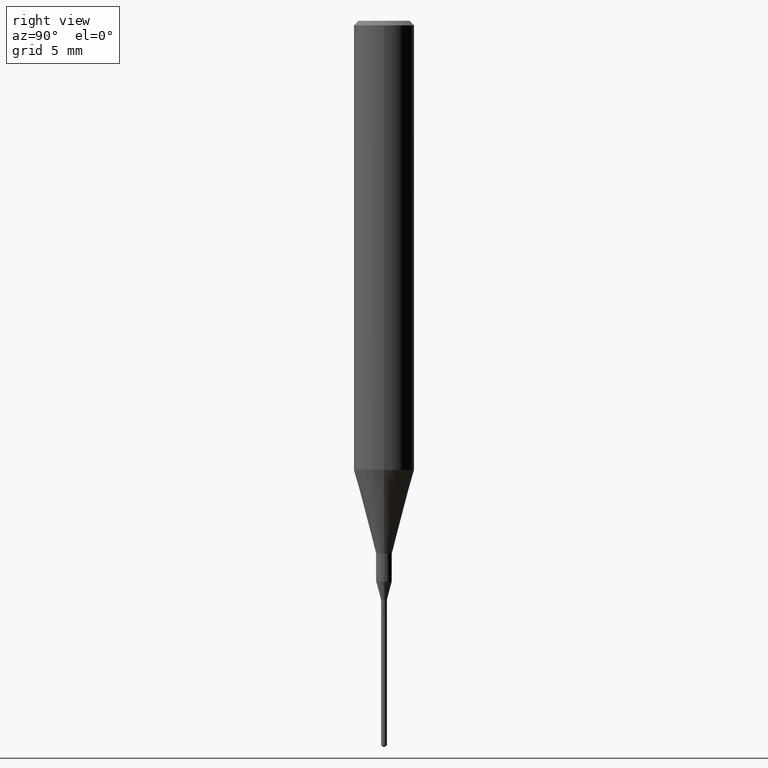
[diagram: clean part render]
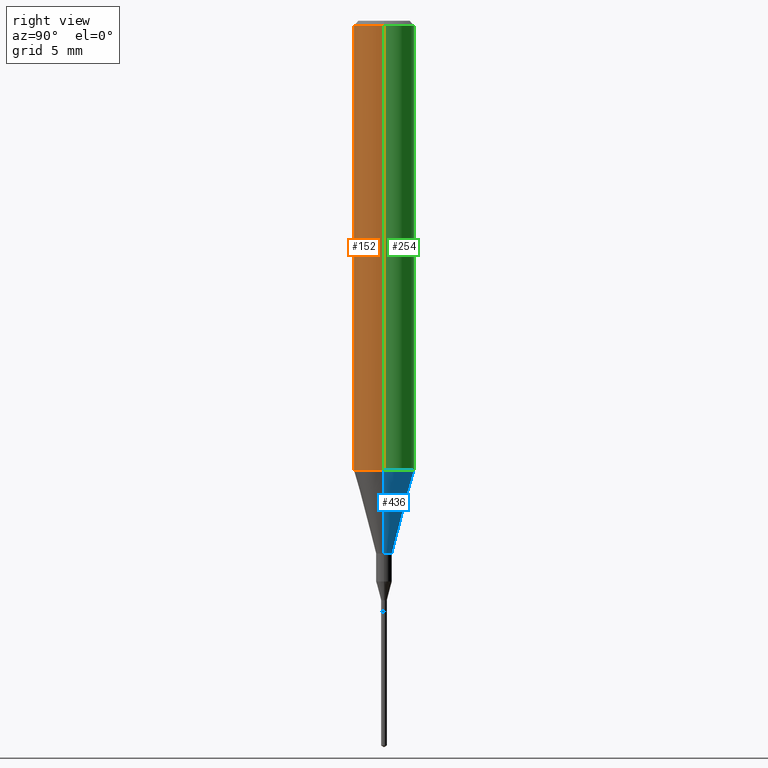
[diagram: same view with three faces highlighted in distinct colors, each labeled with its STEP entity id]
A machine part, right view with three faces highlighted in distinct colors.
Their STEP definitions:

[orange] entity #152 — the highlighted cylindrical surface (edge-blend (fillet) strip) has radius 1.5875 mm, axis along (-0, 0, 1).
#3 = CARTESIAN_POINT ( 'NONE',  ( 2.292627005798582813E-31, -3.273263755165473266E-17, -0.009375000000000069042 ) ) ;
#4 = CARTESIAN_POINT ( 'NONE',  ( 0.06250000000000005551, -4.364351673553920638E-16, 3.047610484872462323E-30 ) ) ;
#5 = CARTESIAN_POINT ( 'NONE',  ( 0.000000000000000000, 0.000000000000000000, 0.000000000000000000 ) ) ;
#29 = CARTESIAN_POINT ( 'NONE',  ( -0.06250000000000000000, -1.191264174815165938E-15, -0.009375000000000069042 ) ) ;
#45 = LINE ( 'NONE', #4, #57 ) ;
#57 = VECTOR ( 'NONE', #183, 39.37007874015748143 ) ;
#86 = CARTESIAN_POINT ( 'NONE',  ( -0.06250000000000011102, -2.793884921928740709E-15, -0.9273926501499395458 ) ) ;
#101 = CARTESIAN_POINT ( 'NONE',  ( 0.06250000000000011102, -3.674409299134196572E-15, -0.9273926501499395458 ) ) ;
#122 = VERTEX_POINT ( 'NONE', #237 ) ;
#135 = DIRECTION ( 'NONE',  ( -2.445468806185136597E-29, 3.491481338843145583E-15, 1.000000000000000000 ) ) ;
#136 = VECTOR ( 'NONE', #487, 39.37007874015748143 ) ;
#146 = CYLINDRICAL_SURFACE ( 'NONE', #481, 0.06250000000000005551 ) ;
#152 = ADVANCED_FACE ( 'NONE', ( #553 ), #146, .T. ) ;
#160 = CARTESIAN_POINT ( 'NONE',  ( 2.267909797027042920E-29, -3.237974131778804114E-15, -0.9273926501499395458 ) ) ;
#177 = ORIENTED_EDGE ( 'NONE', *, *, #530, .T. ) ;
#180 = DIRECTION ( 'NONE',  ( -2.445468806185136597E-29, 3.491481338843145583E-15, 1.000000000000000000 ) ) ;
#182 = EDGE_CURVE ( 'NONE', #399, #122, #555, .T. ) ;
#183 = DIRECTION ( 'NONE',  ( -2.445468806185136877E-29, 3.491481338843145188E-15, 1.000000000000000000 ) ) ;
#197 = ORIENTED_EDGE ( 'NONE', *, *, #182, .F. ) ;
#207 = VERTEX_POINT ( 'NONE', #101 ) ;
#235 = AXIS2_PLACEMENT_3D ( 'NONE', #160, #522, #308 ) ;
#237 = CARTESIAN_POINT ( 'NONE',  ( 0.06250000000000000000, -4.691678049070464390E-16, -0.009375000000000069042 ) ) ;
#258 = CARTESIAN_POINT ( 'NONE',  ( -0.06250000000000005551, 4.440892098500630106E-16, -3.074334431409318916E-30 ) ) ;
#308 = DIRECTION ( 'NONE',  ( 1.000000000000000000, -6.982962677686265922E-15, 0.000000000000000000 ) ) ;
#319 = ORIENTED_EDGE ( 'NONE', *, *, #515, .T. ) ;
#336 = DIRECTION ( 'NONE',  ( 1.000000000000000000, -6.982962677686266711E-15, 4.876176775795935232E-29 ) ) ;
#363 = EDGE_LOOP ( 'NONE', ( #536, #319, #177, #197 ) ) ;
#371 = DIRECTION ( 'NONE',  ( 1.000000000000000000, -6.982962677686266711E-15, 0.000000000000000000 ) ) ;
#394 = LINE ( 'NONE', #258, #136 ) ;
#399 = VERTEX_POINT ( 'NONE', #29 ) ;
#422 = EDGE_CURVE ( 'NONE', #528, #399, #394, .T. ) ;
#481 = AXIS2_PLACEMENT_3D ( 'NONE', #5, #135, #336 ) ;
#487 = DIRECTION ( 'NONE',  ( -2.445468806185136877E-29, 3.491481338843145188E-15, 1.000000000000000000 ) ) ;
#492 = CIRCLE ( 'NONE', #235, 0.06250000000000011102 ) ;
#498 = AXIS2_PLACEMENT_3D ( 'NONE', #3, #180, #371 ) ;
#515 = EDGE_CURVE ( 'NONE', #528, #207, #492, .T. ) ;
#522 = DIRECTION ( 'NONE',  ( -2.445468806185136597E-29, 3.491481338843145583E-15, 1.000000000000000000 ) ) ;
#528 = VERTEX_POINT ( 'NONE', #86 ) ;
#530 = EDGE_CURVE ( 'NONE', #207, #122, #45, .T. ) ;
#536 = ORIENTED_EDGE ( 'NONE', *, *, #422, .F. ) ;
#553 = FACE_OUTER_BOUND ( 'NONE', #363, .T. ) ;
#555 = CIRCLE ( 'NONE', #498, 0.06250000000000000000 ) ;

[blue] entity #436 — the highlighted conical surface has half-angle 15 deg.
#21 = VERTEX_POINT ( 'NONE', #37 ) ;
#37 = CARTESIAN_POINT ( 'NONE',  ( 0.01624999999999999709, -3.954102616239861778E-15, -1.100000000000000089 ) ) ;
#72 = CONICAL_SURFACE ( 'NONE', #480, 0.06250000000000011102, 0.2617993877991501850 ) ;
#80 = ORIENTED_EDGE ( 'NONE', *, *, #570, .T. ) ;
#86 = CARTESIAN_POINT ( 'NONE',  ( -0.06250000000000011102, -2.793884921928740709E-15, -0.9273926501499395458 ) ) ;
#89 = AXIS2_PLACEMENT_3D ( 'NONE', #425, #188, #184 ) ;
#96 = CIRCLE ( 'NONE', #89, 0.06250000000000011102 ) ;
#101 = CARTESIAN_POINT ( 'NONE',  ( 0.06250000000000011102, -3.674409299134196572E-15, -0.9273926501499395458 ) ) ;
#131 = EDGE_CURVE ( 'NONE', #207, #528, #96, .T. ) ;
#143 = LINE ( 'NONE', #334, #276 ) ;
#158 = VECTOR ( 'NONE', #474, 39.37007874015748143 ) ;
#163 = ORIENTED_EDGE ( 'NONE', *, *, #131, .F. ) ;
#172 = ORIENTED_EDGE ( 'NONE', *, *, #499, .F. ) ;
#179 = DIRECTION ( 'NONE',  ( -2.445468806185136597E-29, 3.491481338843145583E-15, 1.000000000000000000 ) ) ;
#184 = DIRECTION ( 'NONE',  ( 1.000000000000000000, -6.982962677686265922E-15, 0.000000000000000000 ) ) ;
#188 = DIRECTION ( 'NONE',  ( -2.445468806185136597E-29, 3.491481338843145583E-15, 1.000000000000000000 ) ) ;
#207 = VERTEX_POINT ( 'NONE', #101 ) ;
#208 = DIRECTION ( 'NONE',  ( 1.000000000000000000, -6.982962677686265922E-15, 0.000000000000000000 ) ) ;
#222 = VERTEX_POINT ( 'NONE', #329 ) ;
#223 = AXIS2_PLACEMENT_3D ( 'NONE', #412, #179, #327 ) ;
#248 = EDGE_CURVE ( 'NONE', #222, #528, #143, .T. ) ;
#276 = VECTOR ( 'NONE', #432, 39.37007874015748143 ) ;
#327 = DIRECTION ( 'NONE',  ( 1.000000000000000000, -6.982962677686259611E-15, 0.000000000000000000 ) ) ;
#329 = CARTESIAN_POINT ( 'NONE',  ( -0.01624999999999999709, -3.826023432441185262E-15, -1.100000000000000089 ) ) ;
#334 = CARTESIAN_POINT ( 'NONE',  ( -0.06250000000000011102, -2.793884921928740709E-15, -0.9273926501499395458 ) ) ;
#348 = FACE_OUTER_BOUND ( 'NONE', #390, .T. ) ;
#390 = EDGE_LOOP ( 'NONE', ( #80, #534, #163, #172 ) ) ;
#412 = CARTESIAN_POINT ( 'NONE',  ( 2.690015686803650369E-29, -3.840629472727460101E-15, -1.100000000000000089 ) ) ;
#425 = CARTESIAN_POINT ( 'NONE',  ( 2.267909797027042920E-29, -3.237974131778804114E-15, -0.9273926501499395458 ) ) ;
#432 = DIRECTION ( 'NONE',  ( -0.2588190451025214611, 5.211531920934550253E-15, 0.9659258262890679791 ) ) ;
#436 = ADVANCED_FACE ( 'NONE', ( #348 ), #72, .T. ) ;
#440 = DIRECTION ( 'NONE',  ( -2.445468806185136597E-29, 3.491481338843145583E-15, 1.000000000000000000 ) ) ;
#454 = CIRCLE ( 'NONE', #223, 0.01624999999999999709 ) ;
#474 = DIRECTION ( 'NONE',  ( 0.2588190451025214611, 1.565188264969620982E-15, 0.9659258262890679791 ) ) ;
#480 = AXIS2_PLACEMENT_3D ( 'NONE', #525, #440, #208 ) ;
#499 = EDGE_CURVE ( 'NONE', #21, #207, #518, .T. ) ;
#518 = LINE ( 'NONE', #569, #158 ) ;
#525 = CARTESIAN_POINT ( 'NONE',  ( 2.267909797027042920E-29, -3.237974131778804114E-15, -0.9273926501499395458 ) ) ;
#528 = VERTEX_POINT ( 'NONE', #86 ) ;
#534 = ORIENTED_EDGE ( 'NONE', *, *, #248, .T. ) ;
#569 = CARTESIAN_POINT ( 'NONE',  ( 0.06250000000000011102, -3.674409299134196572E-15, -0.9273926501499395458 ) ) ;
#570 = EDGE_CURVE ( 'NONE', #21, #222, #454, .T. ) ;

[green] entity #254 — the highlighted cylindrical surface (edge-blend (fillet) strip) has radius 1.5875 mm, axis along (-0, 0, 1).
#4 = CARTESIAN_POINT ( 'NONE',  ( 0.06250000000000005551, -4.364351673553920638E-16, 3.047610484872462323E-30 ) ) ;
#18 = ORIENTED_EDGE ( 'NONE', *, *, #359, .F. ) ;
#29 = CARTESIAN_POINT ( 'NONE',  ( -0.06250000000000000000, -1.191264174815165938E-15, -0.009375000000000069042 ) ) ;
#45 = LINE ( 'NONE', #4, #57 ) ;
#57 = VECTOR ( 'NONE', #183, 39.37007874015748143 ) ;
#86 = CARTESIAN_POINT ( 'NONE',  ( -0.06250000000000011102, -2.793884921928740709E-15, -0.9273926501499395458 ) ) ;
#89 = AXIS2_PLACEMENT_3D ( 'NONE', #425, #188, #184 ) ;
#92 = DIRECTION ( 'NONE',  ( -2.445468806185136597E-29, 3.491481338843145583E-15, 1.000000000000000000 ) ) ;
#96 = CIRCLE ( 'NONE', #89, 0.06250000000000011102 ) ;
#101 = CARTESIAN_POINT ( 'NONE',  ( 0.06250000000000011102, -3.674409299134196572E-15, -0.9273926501499395458 ) ) ;
#122 = VERTEX_POINT ( 'NONE', #237 ) ;
#131 = EDGE_CURVE ( 'NONE', #207, #528, #96, .T. ) ;
#136 = VECTOR ( 'NONE', #487, 39.37007874015748143 ) ;
#183 = DIRECTION ( 'NONE',  ( -2.445468806185136877E-29, 3.491481338843145188E-15, 1.000000000000000000 ) ) ;
#184 = DIRECTION ( 'NONE',  ( 1.000000000000000000, -6.982962677686265922E-15, 0.000000000000000000 ) ) ;
#185 = CARTESIAN_POINT ( 'NONE',  ( 0.000000000000000000, 0.000000000000000000, 0.000000000000000000 ) ) ;
#188 = DIRECTION ( 'NONE',  ( -2.445468806185136597E-29, 3.491481338843145583E-15, 1.000000000000000000 ) ) ;
#193 = DIRECTION ( 'NONE',  ( -2.445468806185136597E-29, 3.491481338843145583E-15, 1.000000000000000000 ) ) ;
#207 = VERTEX_POINT ( 'NONE', #101 ) ;
#218 = ORIENTED_EDGE ( 'NONE', *, *, #422, .T. ) ;
#237 = CARTESIAN_POINT ( 'NONE',  ( 0.06250000000000000000, -4.691678049070464390E-16, -0.009375000000000069042 ) ) ;
#240 = CARTESIAN_POINT ( 'NONE',  ( 2.292627005798582813E-31, -3.273263755165473266E-17, -0.009375000000000069042 ) ) ;
#245 = ORIENTED_EDGE ( 'NONE', *, *, #131, .T. ) ;
#254 = ADVANCED_FACE ( 'NONE', ( #546 ), #501, .T. ) ;
#258 = CARTESIAN_POINT ( 'NONE',  ( -0.06250000000000005551, 4.440892098500630106E-16, -3.074334431409318916E-30 ) ) ;
#272 = EDGE_LOOP ( 'NONE', ( #245, #218, #18, #349 ) ) ;
#297 = AXIS2_PLACEMENT_3D ( 'NONE', #185, #92, #417 ) ;
#349 = ORIENTED_EDGE ( 'NONE', *, *, #530, .F. ) ;
#359 = EDGE_CURVE ( 'NONE', #122, #399, #438, .T. ) ;
#384 = DIRECTION ( 'NONE',  ( 1.000000000000000000, -6.982962677686266711E-15, 0.000000000000000000 ) ) ;
#394 = LINE ( 'NONE', #258, #136 ) ;
#399 = VERTEX_POINT ( 'NONE', #29 ) ;
#417 = DIRECTION ( 'NONE',  ( 1.000000000000000000, -6.982962677686266711E-15, 4.876176775795935232E-29 ) ) ;
#422 = EDGE_CURVE ( 'NONE', #528, #399, #394, .T. ) ;
#425 = CARTESIAN_POINT ( 'NONE',  ( 2.267909797027042920E-29, -3.237974131778804114E-15, -0.9273926501499395458 ) ) ;
#438 = CIRCLE ( 'NONE', #539, 0.06250000000000000000 ) ;
#487 = DIRECTION ( 'NONE',  ( -2.445468806185136877E-29, 3.491481338843145188E-15, 1.000000000000000000 ) ) ;
#501 = CYLINDRICAL_SURFACE ( 'NONE', #297, 0.06250000000000005551 ) ;
#528 = VERTEX_POINT ( 'NONE', #86 ) ;
#530 = EDGE_CURVE ( 'NONE', #207, #122, #45, .T. ) ;
#539 = AXIS2_PLACEMENT_3D ( 'NONE', #240, #193, #384 ) ;
#546 = FACE_OUTER_BOUND ( 'NONE', #272, .T. ) ;